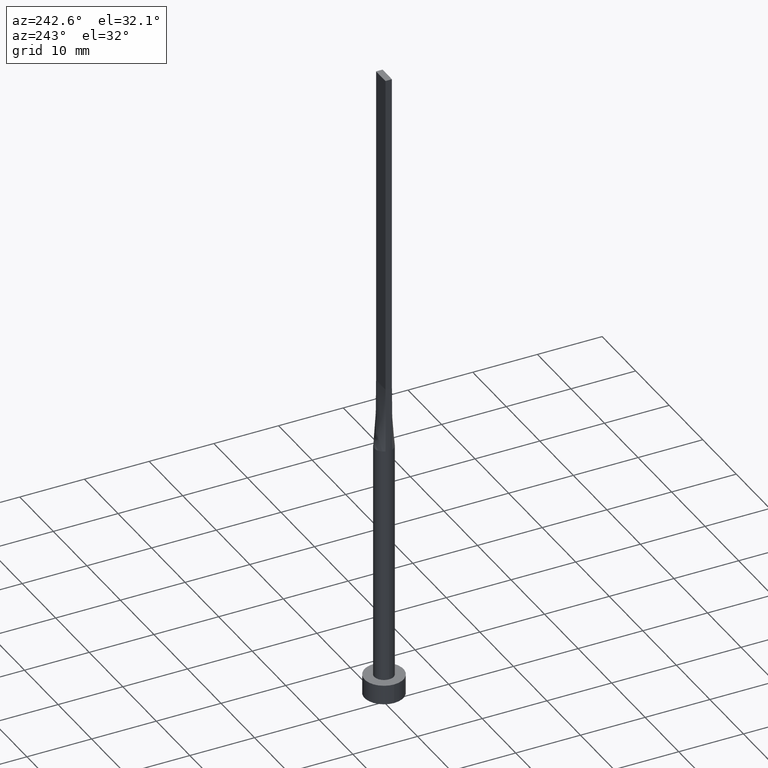
[diagram: clean part render]
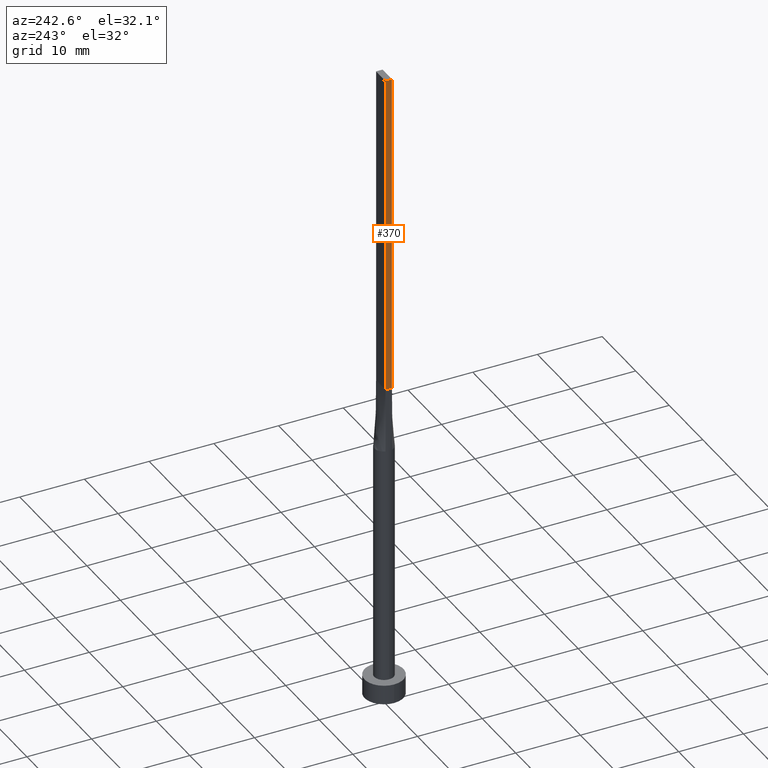
[diagram: same view with one face highlighted and labeled with its STEP entity id]
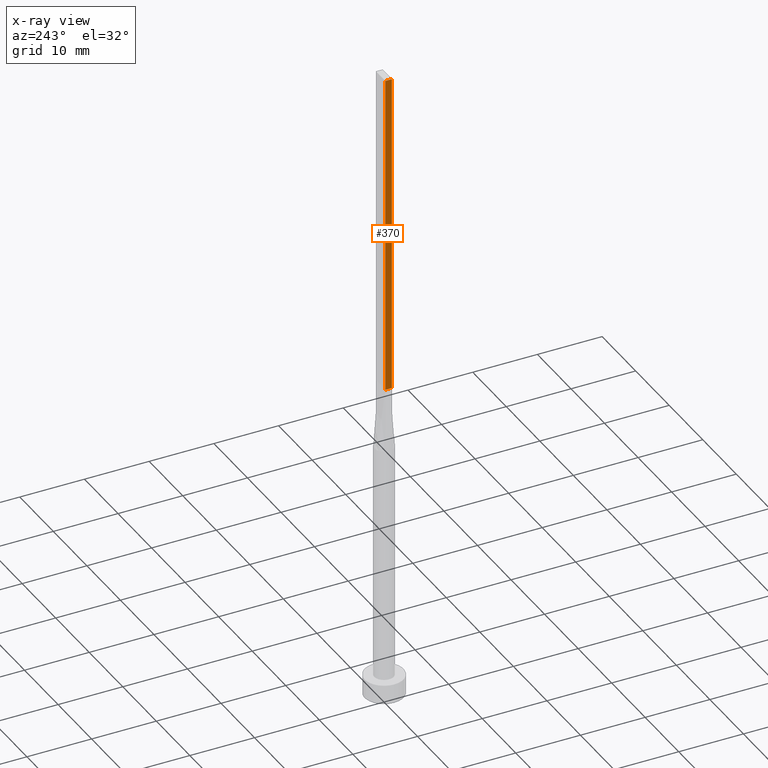
[diagram: x-ray of the same camera — body ghosted, the highlighted face saturated]
A machine part, auxiliary view. The second image highlights one B-rep face of the part: STEP entity #370.
The next image is the same camera in x-ray: the body ghosted, the highlighted face saturated — about 0% of this face is hidden behind the body in this view.
In plain terms, the highlighted planar face has unit normal (1, -0, 0).
Its self-contained STEP definition (entity closure, byte-faithful):
#20 = CARTESIAN_POINT ( 'NONE',  ( -1.399999999999999689, 0.5000000000000002220, 100.0000000000000000 ) ) ;
#24 = EDGE_LOOP ( 'NONE', ( #475, #510, #412, #432 ) ) ;
#25 = DIRECTION ( 'NONE',  ( -2.168404344971009361E-16, -1.000000000000000000, 0.000000000000000000 ) ) ;
#27 = CARTESIAN_POINT ( 'NONE',  ( -1.399999999999999689, 0.5000000000000002220, 100.0000000000000000 ) ) ;
#54 = CARTESIAN_POINT ( 'NONE',  ( -1.399999999999999689, 0.5000000000000002220, 100.0000000000000000 ) ) ;
#64 = EDGE_CURVE ( 'NONE', #380, #238, #538, .T. ) ;
#109 = CARTESIAN_POINT ( 'NONE',  ( -1.399999999999999689, 0.5000000000000002220, 50.00000000000000000 ) ) ;
#110 = LINE ( 'NONE', #27, #518 ) ;
#136 = CARTESIAN_POINT ( 'NONE',  ( -1.399999999999999689, 0.5000000000000002220, 100.0000000000000000 ) ) ;
#156 = EDGE_CURVE ( 'NONE', #238, #209, #566, .T. ) ;
#176 = CARTESIAN_POINT ( 'NONE',  ( -1.399999999999999911, -0.4999999999999995559, 50.00000000000000000 ) ) ;
#181 = VECTOR ( 'NONE', #564, 1000.000000000000000 ) ;
#202 = VECTOR ( 'NONE', #464, 1000.000000000000000 ) ;
#209 = VERTEX_POINT ( 'NONE', #176 ) ;
#238 = VERTEX_POINT ( 'NONE', #258 ) ;
#258 = CARTESIAN_POINT ( 'NONE',  ( -1.399999999999999689, 0.5000000000000002220, 50.00000000000000000 ) ) ;
#289 = CARTESIAN_POINT ( 'NONE',  ( -1.399999999999999911, -0.4999999999999995559, 100.0000000000000000 ) ) ;
#296 = AXIS2_PLACEMENT_3D ( 'NONE', #20, #511, #502 ) ;
#370 = ADVANCED_FACE ( 'NONE', ( #469 ), #428, .F. ) ;
#372 = EDGE_CURVE ( 'NONE', #417, #209, #376, .T. ) ;
#376 = LINE ( 'NONE', #289, #202 ) ;
#380 = VERTEX_POINT ( 'NONE', #54 ) ;
#412 = ORIENTED_EDGE ( 'NONE', *, *, #493, .F. ) ;
#417 = VERTEX_POINT ( 'NONE', #530 ) ;
#428 = PLANE ( 'NONE',  #296 ) ;
#432 = ORIENTED_EDGE ( 'NONE', *, *, #64, .T. ) ;
#464 = DIRECTION ( 'NONE',  ( -0.000000000000000000, -0.000000000000000000, -1.000000000000000000 ) ) ;
#469 = FACE_OUTER_BOUND ( 'NONE', #24, .T. ) ;
#475 = ORIENTED_EDGE ( 'NONE', *, *, #156, .T. ) ;
#493 = EDGE_CURVE ( 'NONE', #380, #417, #110, .T. ) ;
#502 = DIRECTION ( 'NONE',  ( 2.168404344971009361E-16, 1.000000000000000000, 0.000000000000000000 ) ) ;
#510 = ORIENTED_EDGE ( 'NONE', *, *, #372, .F. ) ;
#511 = DIRECTION ( 'NONE',  ( 1.000000000000000000, -2.168404344971009361E-16, 0.000000000000000000 ) ) ;
#518 = VECTOR ( 'NONE', #25, 1000.000000000000000 ) ;
#530 = CARTESIAN_POINT ( 'NONE',  ( -1.399999999999999911, -0.4999999999999995559, 100.0000000000000000 ) ) ;
#535 = DIRECTION ( 'NONE',  ( -0.000000000000000000, -0.000000000000000000, -1.000000000000000000 ) ) ;
#538 = LINE ( 'NONE', #136, #568 ) ;
#564 = DIRECTION ( 'NONE',  ( -2.168404344971009361E-16, -1.000000000000000000, 0.000000000000000000 ) ) ;
#566 = LINE ( 'NONE', #109, #181 ) ;
#568 = VECTOR ( 'NONE', #535, 1000.000000000000000 ) ;